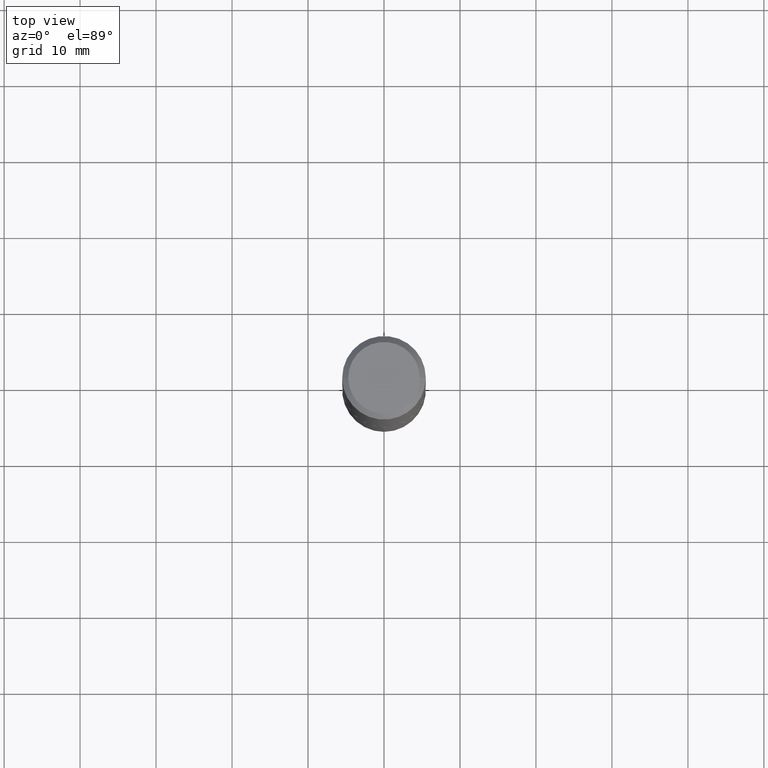
[diagram: clean part render]
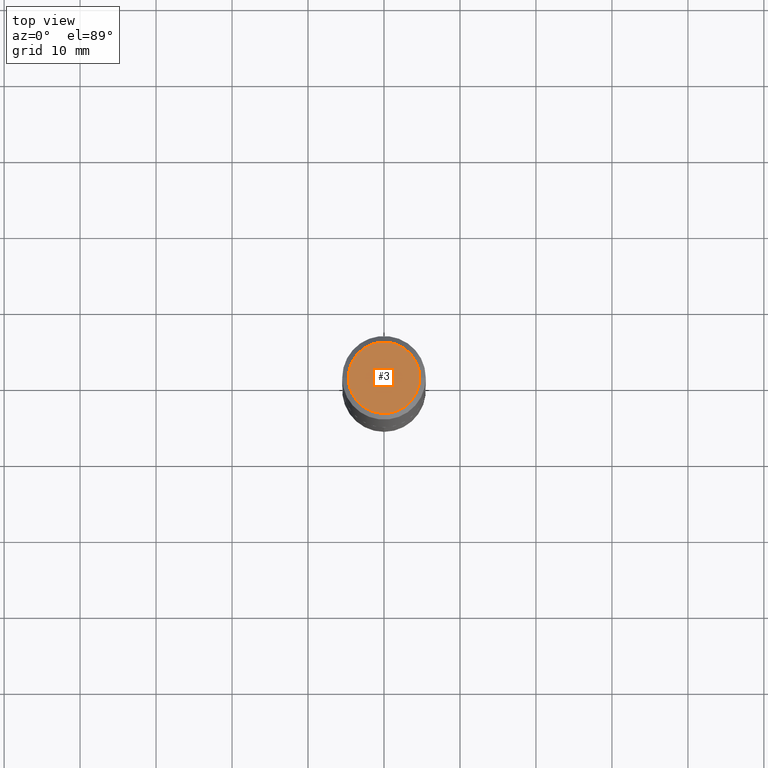
[diagram: same view with one face highlighted and labeled with its STEP entity id]
A machine part, top view. The second image highlights one B-rep face of the part: STEP entity #3.
In plain terms, the highlighted planar face has unit normal (0, -0, -1).
Its self-contained STEP definition (entity closure, byte-faithful):
#3 = ADVANCED_FACE ( 'NONE', ( #308 ), #347, .F. ) ;
#20 = CIRCLE ( 'NONE', #147, 0.1852999999999999925 ) ;
#21 = DIRECTION ( 'NONE',  ( -2.445468806185136597E-29, 3.491481338843145583E-15, 1.000000000000000000 ) ) ;
#77 = DIRECTION ( 'NONE',  ( -1.000000000000000000, 6.982962677686265922E-15, -4.876176775795935793E-29 ) ) ;
#86 = VERTEX_POINT ( 'NONE', #320 ) ;
#88 = ORIENTED_EDGE ( 'NONE', *, *, #186, .T. ) ;
#103 = EDGE_LOOP ( 'NONE', ( #113, #88 ) ) ;
#106 = CARTESIAN_POINT ( 'NONE',  ( -1.182960040634177403E-47, 1.688953421129294899E-33, 4.837354856632018279E-19 ) ) ;
#113 = ORIENTED_EDGE ( 'NONE', *, *, #124, .T. ) ;
#124 = EDGE_CURVE ( 'NONE', #86, #287, #278, .T. ) ;
#146 = CARTESIAN_POINT ( 'NONE',  ( 0.1852999999999999925, -1.432999956121669510E-15, 4.837354856727365293E-19 ) ) ;
#147 = AXIS2_PLACEMENT_3D ( 'NONE', #196, #21, #226 ) ;
#164 = DIRECTION ( 'NONE',  ( 1.000000000000000000, -6.982962677686266711E-15, 4.876177403239504402E-29 ) ) ;
#186 = EDGE_CURVE ( 'NONE', #287, #86, #20, .T. ) ;
#196 = CARTESIAN_POINT ( 'NONE',  ( -1.182960040634177403E-47, 1.688953421129294899E-33, 4.837354856632018279E-19 ) ) ;
#197 = DIRECTION ( 'NONE',  ( -2.445468806185136597E-29, 3.491481338843145583E-15, 1.000000000000000000 ) ) ;
#221 = DIRECTION ( 'NONE',  ( 2.438088387897960049E-29, -3.491481338843145188E-15, -1.000000000000000000 ) ) ;
#226 = DIRECTION ( 'NONE',  ( 1.000000000000000000, -6.982962677686266711E-15, 4.876177403239504402E-29 ) ) ;
#230 = AXIS2_PLACEMENT_3D ( 'NONE', #106, #197, #164 ) ;
#272 = CARTESIAN_POINT ( 'NONE',  ( -5.914800203170887017E-48, 8.444767105646474497E-34, 2.418677428316009140E-19 ) ) ;
#278 = CIRCLE ( 'NONE', #230, 0.1852999999999999925 ) ;
#287 = VERTEX_POINT ( 'NONE', #146 ) ;
#308 = FACE_OUTER_BOUND ( 'NONE', #103, .T. ) ;
#320 = CARTESIAN_POINT ( 'NONE',  ( -0.1852999999999999925, 1.348497380094688552E-15, 4.837354856539620827E-19 ) ) ;
#347 = PLANE ( 'NONE',  #387 ) ;
#387 = AXIS2_PLACEMENT_3D ( 'NONE', #272, #221, #77 ) ;